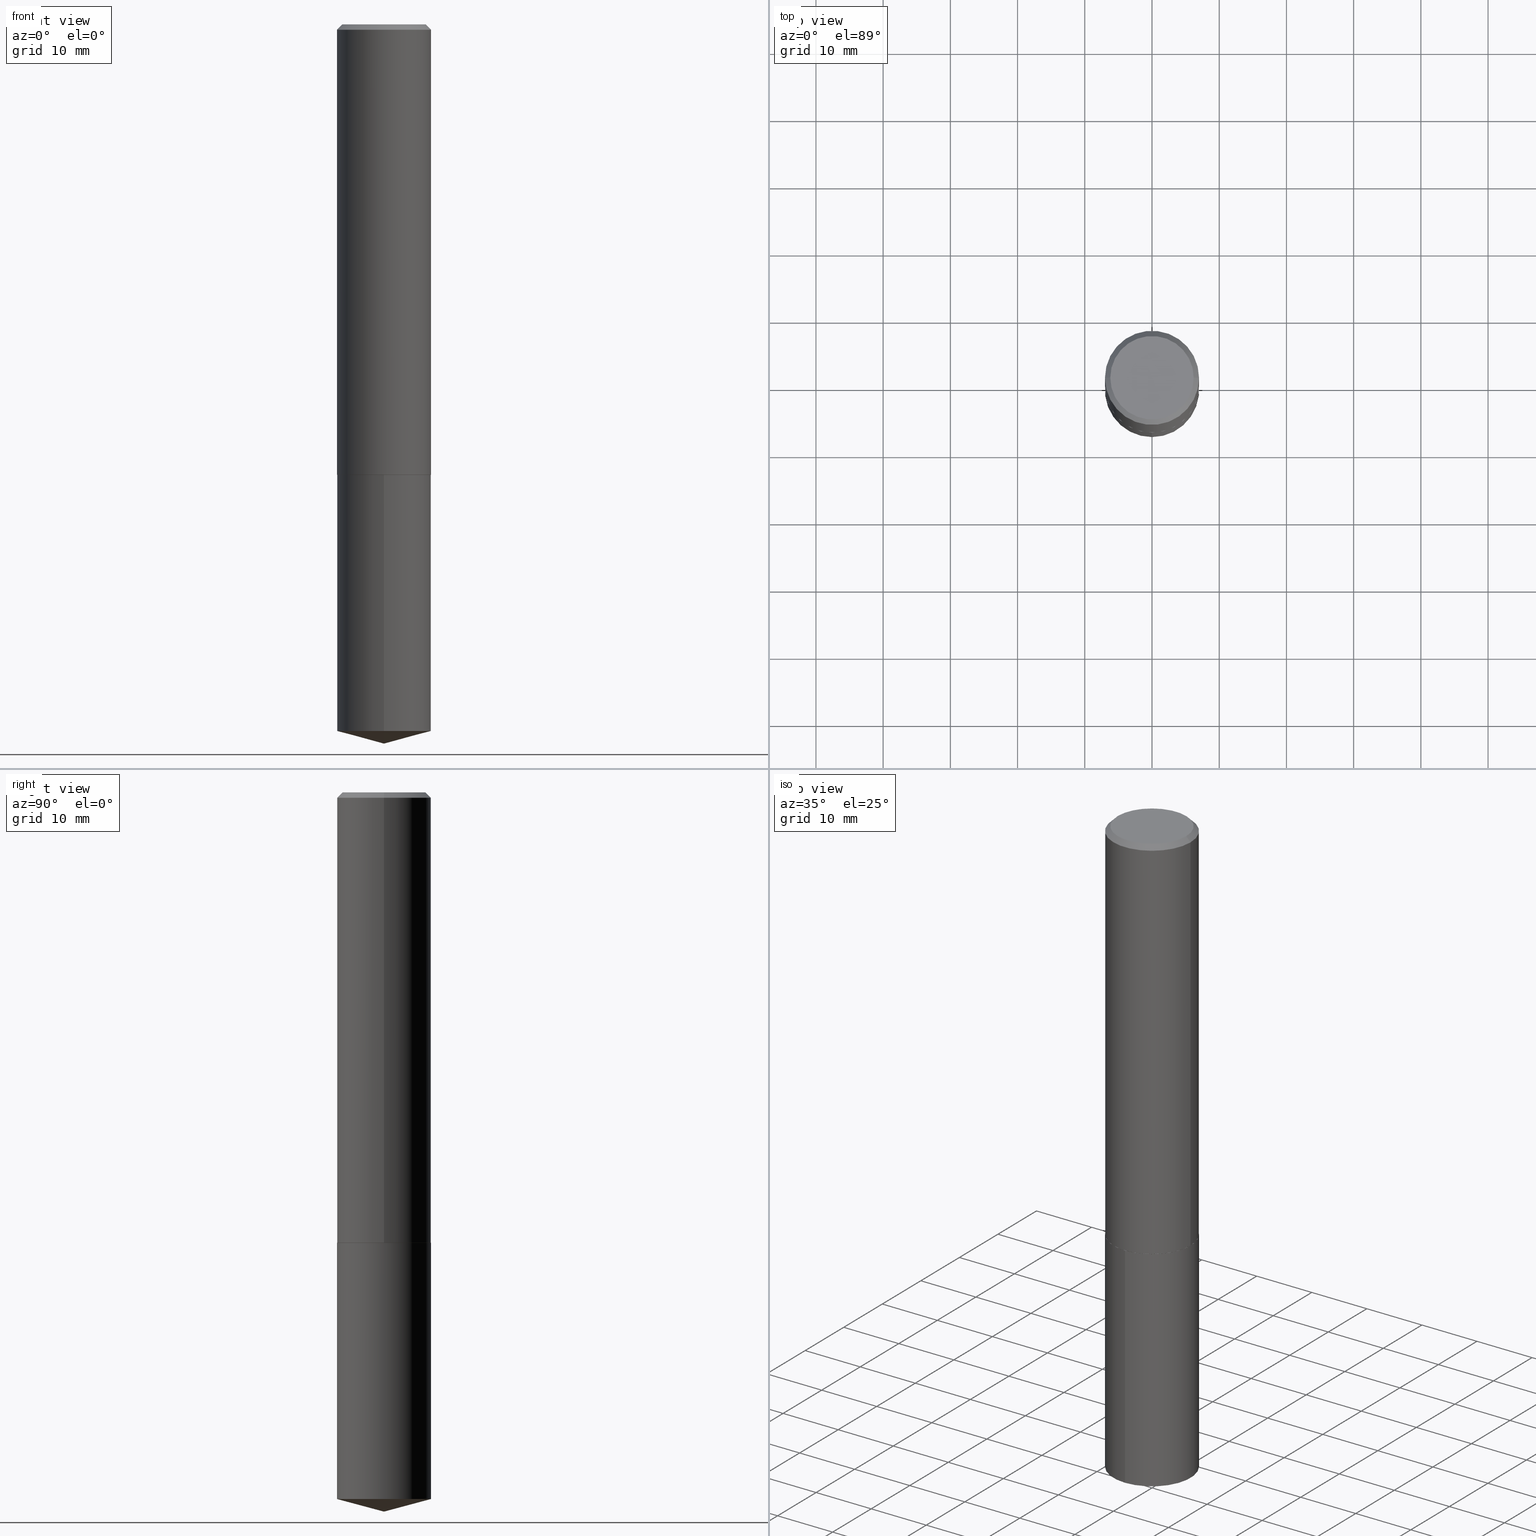
[diagram: canonical four-view strip — front | top / right | iso, engineering-drawing reading convention]
A machine part, canonical four-view strip (front | top / right | iso — engineering-drawing reading convention). The complete STEP part file that produces these views, byte-faithful:
ISO-10303-21;
HEADER;
FILE_DESCRIPTION (( 'STEP AP203' ),
    '1' );
FILE_NAME ('63038.STEP',
    '2024-04-23T08:21:58',
    ( '' ),
    ( '' ),
    'SwSTEP 2.0',
    'SolidWorks 2023',
    '' );
FILE_SCHEMA (( 'CONFIG_CONTROL_DESIGN' ));
ENDSEC;

DATA;
#1 = ORIENTED_EDGE ( 'NONE', *, *, #74, .F. ) ;
#2 = LENGTH_MEASURE_WITH_UNIT ( LENGTH_MEASURE( 0.02539999999999999897 ), #156 );
#3 = AXIS2_PLACEMENT_3D ( 'NONE', #258, #375, #369 ) ;
#4 = CARTESIAN_POINT ( 'NONE',  ( 6.449434882552062671E-29, -9.208083734931027966E-15, -2.637300000000000200 ) ) ;
#5 = ORIENTED_EDGE ( 'NONE', *, *, #29, .F. ) ;
#6 = APPROVAL_STATUS ( 'not_yet_approved' ) ;
#7 = CLOSED_SHELL ( 'NONE', ( #24, #108, #389, #316, #286, #146, #181, #185 ) ) ;
#8 = CC_DESIGN_APPROVAL ( #183, ( #136 ) ) ;
#9 = EDGE_CURVE ( 'NONE', #26, #253, #311, .T. ) ;
#10 = APPROVAL_STATUS ( 'not_yet_approved' ) ;
#11 = VERTEX_POINT ( 'NONE', #25 ) ;
#12 = DIRECTION ( 'NONE',  ( -6.982962677686266711E-15, -1.000000000000000000, 3.510303681827621500E-15 ) ) ;
#13 = VECTOR ( 'NONE', #119, 39.37007874015748143 ) ;
#14 = PERSON_AND_ORGANIZATION_ROLE ( 'design_owner' ) ;
#15 = CARTESIAN_POINT ( 'NONE',  ( 0.2756000000000000116, -1.999862040024683603E-15, -0.03125000000000020123 ) ) ;
#16 = PERSON_AND_ORGANIZATION ( #197, #44 ) ;
#17 = CARTESIAN_POINT ( 'NONE',  ( -0.2756000000000002892, -7.249827955176189799E-15, -2.637300000000000200 ) ) ;
#18 = CALENDAR_DATE ( 2024, 23, 4 ) ;
#19 = AXIS2_PLACEMENT_3D ( 'NONE', #39, #251, #98 ) ;
#20 = CARTESIAN_POINT ( 'NONE',  ( 0.2756000000000002892, -1.113258824890136450E-14, -2.637300000000000200 ) ) ;
#21 = LINE ( 'NONE', #301, #366 ) ;
#22 = FACE_OUTER_BOUND ( 'NONE', #104, .T. ) ;
#23 = LINE ( 'NONE', #202, #13 ) ;
#24 = ADVANCED_FACE ( 'NONE', ( #84 ), #33, .T. ) ;
#25 = CARTESIAN_POINT ( 'NONE',  ( -0.2756000000000002892, -7.249827955176189799E-15, -2.637300000000000200 ) ) ;
#26 = VERTEX_POINT ( 'NONE', #240 ) ;
#27 = PRODUCT ( '63038', '63038', '', ( #363 ) ) ;
#28 = ORIENTED_EDGE ( 'NONE', *, *, #299, .F. ) ;
#29 = EDGE_CURVE ( 'NONE', #167, #138, #23, .T. ) ;
#30 = AXIS2_PLACEMENT_3D ( 'NONE', #114, #200, #268 ) ;
#31 = ORIENTED_EDGE ( 'NONE', *, *, #193, .T. ) ;
#32 = DATE_TIME_ROLE ( 'creation_date' ) ;
#33 = CONICAL_SURFACE ( 'NONE', #135, 0.2756000000000000116, 0.7853981633974450594 ) ;
#34 = APPROVAL ( #6, 'UNSPECIFIED' ) ;
#35 = DIRECTION ( 'NONE',  ( 0.7071067811865452413, -7.319954787623248157E-15, -0.7071067811865497932 ) ) ;
#36 = CIRCLE ( 'NONE', #308, 0.2756000000000002892 ) ;
#37 = CALENDAR_DATE ( 2024, 23, 4 ) ;
#38 = DIRECTION ( 'NONE',  ( -2.445558201220444659E-29, 3.491353320064535150E-15, 1.000000000000000000 ) ) ;
#39 = CARTESIAN_POINT ( 'NONE',  ( 7.642090019328601786E-31, -1.091087918388490144E-16, -0.03125000000000020123 ) ) ;
#40 = CC_DESIGN_PERSON_AND_ORGANIZATION_ASSIGNMENT ( #83, #233, ( #136 ) ) ;
#41 = ORIENTED_EDGE ( 'NONE', *, *, #379, .F. ) ;
#42 = LINE ( 'NONE', #249, #49 ) ;
#43 = CIRCLE ( 'NONE', #279, 0.2756000000000000116 ) ;
#44 = ORGANIZATION ( 'UNSPECIFIED', 'UNSPECIFIED', '' ) ;
#45 = DIRECTION ( 'NONE',  ( 1.000000000000000000, -6.982962677686265922E-15, 0.000000000000000000 ) ) ;
#46 = PERSON_AND_ORGANIZATION_ROLE ( 'creator' ) ;
#47 = DIRECTION ( 'NONE',  ( 0.7071067811860403118, -2.468850131076945266E-15, 0.7071067811870545006 ) ) ;
#48 = COORDINATED_UNIVERSAL_TIME_OFFSET ( 5, 0, .BEHIND. ) ;
#49 = VECTOR ( 'NONE', #163, 39.37007874015748143 ) ;
#50 = CARTESIAN_POINT ( 'NONE',  ( 6.450657616955154352E-29, -9.209829475600450259E-15, -2.637800000000000367 ) ) ;
#51 = SHAPE_DEFINITION_REPRESENTATION ( #213, #154 ) ;
#52 = DIRECTION ( 'NONE',  ( -2.445468806185136597E-29, 3.491481338843145583E-15, 1.000000000000000000 ) ) ;
#53 = FACE_OUTER_BOUND ( 'NONE', #144, .T. ) ;
#54 = CARTESIAN_POINT ( 'NONE',  ( 0.2756000000000001782, -1.924504513970336137E-15, 1.343874319409360828E-29 ) ) ;
#55 = DIRECTION ( 'NONE',  ( -6.982962677686265922E-15, -1.000000000000000000, 3.964946289788480896E-15 ) ) ;
#56 = CYLINDRICAL_SURFACE ( 'NONE', #236, 0.2756000000000001782 ) ;
#57 = CONICAL_SURFACE ( 'NONE', #378, 146.9311341562558084, 1.308996938995748538 ) ;
#58 = LOCAL_TIME ( 4, 21, 58.00000000000000000, #170 ) ;
#59 = DIRECTION ( 'NONE',  ( 1.000000000000000000, -6.982962677686265922E-15, 0.000000000000000000 ) ) ;
#60 = CARTESIAN_POINT ( 'NONE',  ( 0.2756000000000002892, -1.113258824890136450E-14, -2.637300000000000200 ) ) ;
#61 = EDGE_CURVE ( 'NONE', #79, #182, #359, .T. ) ;
#62 = DESIGN_CONTEXT ( 'detailed design', #354, 'design' ) ;
#63 = ORIENTED_EDGE ( 'NONE', *, *, #227, .T. ) ;
#64 = DIRECTION ( 'NONE',  ( 0.000000000000000000, 0.000000000000000000, 1.000000000000000000 ) ) ;
#65 = MANIFOLD_SOLID_BREP ( 'Body-Move/Copy2[1]', #241 ) ;
#66 = MANIFOLD_SOLID_BREP ( 'Body-Move/Copy2[2]', #7 ) ;
#67 = ORIENTED_EDGE ( 'NONE', *, *, #143, .T. ) ;
#68 = COORDINATED_UNIVERSAL_TIME_OFFSET ( 5, 0, .BEHIND. ) ;
#69 = DIRECTION ( 'NONE',  ( -2.445468806185136877E-29, 3.491481338843145188E-15, 1.000000000000000000 ) ) ;
#70 = DATE_AND_TIME ( #313, #93 ) ;
#71 = CIRCLE ( 'NONE', #124, 0.2756000000000000116 ) ;
#72 = AXIS2_PLACEMENT_3D ( 'NONE', #318, #192, #45 ) ;
#73 = CARTESIAN_POINT ( 'NONE',  ( 0.2756000000000000116, -2.033613305809184449E-15, -0.03125000000000020123 ) ) ;
#74 = EDGE_CURVE ( 'NONE', #149, #261, #385, .T. ) ;
#75 = PLANE ( 'NONE',  #3 ) ;
#76 = ORIENTED_EDGE ( 'NONE', *, *, #157, .T. ) ;
#77 = DIRECTION ( 'NONE',  ( -6.982962677686265922E-15, -1.000000000000000000, 3.964946289788480896E-15 ) ) ;
#78 = ORIENTED_EDGE ( 'NONE', *, *, #9, .T. ) ;
#79 = VERTEX_POINT ( 'NONE', #87 ) ;
#80 = CARTESIAN_POINT ( 'NONE',  ( -1.924504513970233585E-15, -0.2756000000000144445, -4.138753202565982114 ) ) ;
#81 = LOCAL_TIME ( 4, 21, 58.00000000000000000, #131 ) ;
#82 = ORIENTED_EDGE ( 'NONE', *, *, #29, .T. ) ;
#83 = PERSON_AND_ORGANIZATION ( #197, #44 ) ;
#84 = FACE_OUTER_BOUND ( 'NONE', #370, .T. ) ;
#85 = PERSON_AND_ORGANIZATION ( #197, #44 ) ;
#86 = DIRECTION ( 'NONE',  ( -2.445468806185136877E-29, 3.491481338843145188E-15, 1.000000000000000000 ) ) ;
#87 = CARTESIAN_POINT ( 'NONE',  ( -0.2756000000000000116, -2.700340483630100761E-15, -0.03125000000000020123 ) ) ;
#88 = EDGE_LOOP ( 'NONE', ( #95, #126, #63, #289 ) ) ;
#89 = LINE ( 'NONE', #54, #216 ) ;
#90 = CARTESIAN_POINT ( 'NONE',  ( 7.642090019328601786E-31, -1.091087918388490144E-16, -0.03125000000000020123 ) ) ;
#91 = DIRECTION ( 'NONE',  ( -2.445558201220444659E-29, 3.491353320064535150E-15, 1.000000000000000000 ) ) ;
#92 = APPROVAL_PERSON_ORGANIZATION ( #159, #183, #99 ) ;
#93 = LOCAL_TIME ( 4, 21, 58.00000000000000000, #68 ) ;
#94 =( NAMED_UNIT ( * ) PLANE_ANGLE_UNIT ( ) SI_UNIT ( $, .RADIAN. ) );
#95 = ORIENTED_EDGE ( 'NONE', *, *, #221, .F. ) ;
#96 = ORIENTED_EDGE ( 'NONE', *, *, #305, .T. ) ;
#97 = DIRECTION ( 'NONE',  ( -2.445468806185136597E-29, 3.491481338843145583E-15, 1.000000000000000000 ) ) ;
#98 = DIRECTION ( 'NONE',  ( -1.000000000000000000, 6.982962677686267499E-15, 0.000000000000000000 ) ) ;
#99 = APPROVAL_ROLE ( '' ) ;
#100 = DIRECTION ( 'NONE',  ( -2.445558201220444659E-29, 3.491353320064535150E-15, 1.000000000000000000 ) ) ;
#101 = VERTEX_POINT ( 'NONE', #384 ) ;
#102 = CIRCLE ( 'NONE', #372, 0.2756000000000000116 ) ;
#103 = FACE_OUTER_BOUND ( 'NONE', #273, .T. ) ;
#104 = EDGE_LOOP ( 'NONE', ( #1, #387, #111 ) ) ;
#105 = LINE ( 'NONE', #293, #110 ) ;
#106 = ORIENTED_EDGE ( 'NONE', *, *, #164, .T. ) ;
#107 = APPROVAL_DATE_TIME ( #129, #34 ) ;
#108 = ADVANCED_FACE ( 'NONE', ( #53 ), #56, .T. ) ;
#109 = EDGE_LOOP ( 'NONE', ( #5, #275, #204, #177 ) ) ;
#110 = VECTOR ( 'NONE', #69, 39.37007874015748143 ) ;
#111 = ORIENTED_EDGE ( 'NONE', *, *, #212, .F. ) ;
#112 = DIRECTION ( 'NONE',  ( 6.863315791527694259E-15, 0.9659258262890694224, 0.2588190451025160765 ) ) ;
#113 = CARTESIAN_POINT ( 'NONE',  ( 6.450657616955154352E-29, -9.209829475600450259E-15, -2.637800000000000367 ) ) ;
#114 = CARTESIAN_POINT ( 'NONE',  ( 7.642090019328601786E-31, -1.091087918388490144E-16, -0.03125000000000020123 ) ) ;
#115 = FACE_OUTER_BOUND ( 'NONE', #348, .T. ) ;
#116 = DIRECTION ( 'NONE',  ( -2.445468806185136597E-29, 3.491481338843145583E-15, 1.000000000000000000 ) ) ;
#117 = AXIS2_PLACEMENT_3D ( 'NONE', #113, #331, #55 ) ;
#118 = AXIS2_PLACEMENT_3D ( 'NONE', #361, #64, #309 ) ;
#119 = DIRECTION ( 'NONE',  ( -2.445558201220444659E-29, 3.491353320064535150E-15, 1.000000000000000000 ) ) ;
#120 = ADVANCED_FACE ( 'NONE', ( #22 ), #57, .T. ) ;
#121 = CARTESIAN_POINT ( 'NONE',  ( 1.030168686601297567E-28, -1.470835037197229741E-14, -4.212600000000000122 ) ) ;
#122 = FACE_OUTER_BOUND ( 'NONE', #319, .T. ) ;
#123 = DIRECTION ( 'NONE',  ( 2.445468806185136597E-29, -3.491481338843145583E-15, -1.000000000000000000 ) ) ;
#124 = AXIS2_PLACEMENT_3D ( 'NONE', #285, #162, #346 ) ;
#125 = DIRECTION ( 'NONE',  ( 1.000000000000000000, -6.982962677686265922E-15, 0.000000000000000000 ) ) ;
#126 = ORIENTED_EDGE ( 'NONE', *, *, #9, .F. ) ;
#127 = ADVANCED_FACE ( 'NONE', ( #115 ), #271, .T. ) ;
#128 = AXIS2_PLACEMENT_3D ( 'NONE', #220, #226, #367 ) ;
#129 = DATE_AND_TIME ( #257, #81 ) ;
#130 = EDGE_CURVE ( 'NONE', #261, #269, #180, .T. ) ;
#131 = COORDINATED_UNIVERSAL_TIME_OFFSET ( 5, 0, .BEHIND. ) ;
#132 = EDGE_LOOP ( 'NONE', ( #343, #350, #380 ) ) ;
#133 = FACE_OUTER_BOUND ( 'NONE', #132, .T. ) ;
#134 = ORIENTED_EDGE ( 'NONE', *, *, #324, .F. ) ;
#135 = AXIS2_PLACEMENT_3D ( 'NONE', #151, #123, #266 ) ;
#136 = PRODUCT_DEFINITION_FORMATION_WITH_SPECIFIED_SOURCE ( 'ANY', '', #27, .NOT_KNOWN. ) ;
#137 = DIRECTION ( 'NONE',  ( -2.445558201220444659E-29, 3.491353320064535150E-15, 1.000000000000000000 ) ) ;
#138 = VERTEX_POINT ( 'NONE', #272 ) ;
#139 = APPLICATION_PROTOCOL_DEFINITION ( 'international standard', 'config_control_design', 1994, #354 ) ;
#140 = DIRECTION ( 'NONE',  ( -2.445468806185136597E-29, 3.491481338843145583E-15, 1.000000000000000000 ) ) ;
#141 = ORIENTED_EDGE ( 'NONE', *, *, #368, .T. ) ;
#142 = CARTESIAN_POINT ( 'NONE',  ( -5.300858916259507926E-47, 7.568221659237642966E-33, 2.167624834490815307E-18 ) ) ;
#143 = EDGE_CURVE ( 'NONE', #101, #158, #321, .T. ) ;
#144 = EDGE_LOOP ( 'NONE', ( #96, #302, #174, #28 ) ) ;
#145 = CC_DESIGN_SECURITY_CLASSIFICATION ( #229, ( #136 ) ) ;
#146 = ADVANCED_FACE ( 'NONE', ( #171 ), #147, .T. ) ;
#147 = CYLINDRICAL_SURFACE ( 'NONE', #347, 0.2756000000000001782 ) ;
#148 = DIRECTION ( 'NONE',  ( -2.445558201220444659E-29, 3.491353320064535150E-15, 1.000000000000000000 ) ) ;
#149 = VERTEX_POINT ( 'NONE', #325 ) ;
#150 = CONICAL_SURFACE ( 'NONE', #19, 0.2756000000000000116, 0.7853981633974450594 ) ;
#151 = CARTESIAN_POINT ( 'NONE',  ( 7.642090019328601786E-31, -1.091087918388490144E-16, -0.03125000000000020123 ) ) ;
#152 = EDGE_CURVE ( 'NONE', #138, #269, #201, .T. ) ;
#153 = DIRECTION ( 'NONE',  ( 1.000000000000000000, -6.982962677686266711E-15, 4.876118653798672988E-29 ) ) ;
#154 = ADVANCED_BREP_SHAPE_REPRESENTATION ( '63038', ( #65, #66, #118 ), #349 ) ;
#155 = AXIS2_PLACEMENT_3D ( 'NONE', #188, #314, #12 ) ;
#156 =( LENGTH_UNIT ( ) NAMED_UNIT ( * ) SI_UNIT ( $, .METRE. ) );
#157 = EDGE_CURVE ( 'NONE', #295, #101, #274, .T. ) ;
#158 = VERTEX_POINT ( 'NONE', #60 ) ;
#159 = PERSON_AND_ORGANIZATION ( #197, #44 ) ;
#160 = CIRCLE ( 'NONE', #30, 0.2756000000000000116 ) ;
#161 = FACE_OUTER_BOUND ( 'NONE', #300, .T. ) ;
#162 = DIRECTION ( 'NONE',  ( -2.445558201220444659E-29, 3.491353320064535150E-15, 1.000000000000000000 ) ) ;
#163 = DIRECTION ( 'NONE',  ( -0.7071067811865452413, 2.468850131082233000E-15, -0.7071067811865497932 ) ) ;
#164 = EDGE_CURVE ( 'NONE', #101, #295, #215, .T. ) ;
#165 = PERSON_AND_ORGANIZATION ( #197, #44 ) ;
#166 = CARTESIAN_POINT ( 'NONE',  ( -1.924504513970270662E-15, -0.2756000000000092265, -2.637799999999999478 ) ) ;
#167 = VERTEX_POINT ( 'NONE', #310 ) ;
#168 = APPROVAL_DATE_TIME ( #284, #183 ) ;
#169 = FACE_OUTER_BOUND ( 'NONE', #109, .T. ) ;
#170 = COORDINATED_UNIVERSAL_TIME_OFFSET ( 5, 0, .BEHIND. ) ;
#171 = FACE_OUTER_BOUND ( 'NONE', #211, .T. ) ;
#172 = DIRECTION ( 'NONE',  ( 1.000000000000000000, -6.982962677686265922E-15, 0.000000000000000000 ) ) ;
#173 = VECTOR ( 'NONE', #35, 39.37007874015748143 ) ;
#174 = ORIENTED_EDGE ( 'NONE', *, *, #368, .F. ) ;
#175 = CARTESIAN_POINT ( 'NONE',  ( 0.000000000000000000, 0.000000000000000000, 0.000000000000000000 ) ) ;
#176 = FACE_OUTER_BOUND ( 'NONE', #222, .T. ) ;
#177 = ORIENTED_EDGE ( 'NONE', *, *, #152, .F. ) ;
#178 = PLANE ( 'NONE',  #280 ) ;
#179 = APPROVAL_PERSON_ORGANIZATION ( #250, #34, #282 ) ;
#180 = LINE ( 'NONE', #307, #288 ) ;
#181 = ADVANCED_FACE ( 'NONE', ( #218 ), #150, .T. ) ;
#182 = VERTEX_POINT ( 'NONE', #73 ) ;
#183 = APPROVAL ( #10, 'UNSPECIFIED' ) ;
#184 = ORIENTED_EDGE ( 'NONE', *, *, #157, .F. ) ;
#185 = ADVANCED_FACE ( 'NONE', ( #103 ), #338, .F. ) ;
#186 = DIRECTION ( 'NONE',  ( 1.000000000000000000, -6.982962677686268288E-15, 0.000000000000000000 ) ) ;
#187 = CIRCLE ( 'NONE', #320, 0.2443500000000000116 ) ;
#188 = CARTESIAN_POINT ( 'NONE',  ( -8.597989627344968140E-28, 1.227468424366129102E-13, 35.15747874015747954 ) ) ;
#189 = CARTESIAN_POINT ( 'NONE',  ( 0.2443500000000000116, -1.838112362890078477E-15, 2.167624834503208667E-18 ) ) ;
#190 = ORIENTED_EDGE ( 'NONE', *, *, #217, .F. ) ;
#191 = DIRECTION ( 'NONE',  ( -6.982962677686265922E-15, -1.000000000000000000, 3.964946289788480896E-15 ) ) ;
#192 = DIRECTION ( 'NONE',  ( -2.445468806185136597E-29, 3.491481338843145583E-15, 1.000000000000000000 ) ) ;
#193 = EDGE_CURVE ( 'NONE', #269, #138, #43, .T. ) ;
#194 = DIRECTION ( 'NONE',  ( 1.000000000000000000, -6.982962677686266711E-15, 4.876118653798672988E-29 ) ) ;
#195 = ORIENTED_EDGE ( 'NONE', *, *, #212, .T. ) ;
#196 = APPROVAL_STATUS ( 'not_yet_approved' ) ;
#197 = PERSON ( 'UNSPECIFIED', 'UNSPECIFIED', 'UNSPECIFIED', ('UNSPECIFIED'), ('UNSPECIFIED'), ('UNSPECIFIED') ) ;
#198 = DIRECTION ( 'NONE',  ( 1.000000000000000000, -6.982962677686265922E-15, 4.876176775795935793E-29 ) ) ;
#199 = DATE_AND_TIME ( #297, #298 ) ;
#200 = DIRECTION ( 'NONE',  ( -2.445468806185136597E-29, 3.491481338843145583E-15, 1.000000000000000000 ) ) ;
#201 = CIRCLE ( 'NONE', #208, 0.2756000000000000116 ) ;
#202 = CARTESIAN_POINT ( 'NONE',  ( 1.958255779754900487E-15, 0.2755999999999907968, -2.637800000000001699 ) ) ;
#203 = EDGE_CURVE ( 'NONE', #11, #79, #105, .T. ) ;
#204 = ORIENTED_EDGE ( 'NONE', *, *, #130, .T. ) ;
#205 = CARTESIAN_POINT ( 'NONE',  ( 6.449434882552062671E-29, -9.208083734931027966E-15, -2.637300000000000200 ) ) ;
#206 = DIRECTION ( 'NONE',  ( -2.445468806185136597E-29, 3.491481338843145583E-15, 1.000000000000000000 ) ) ;
#207 = CC_DESIGN_DATE_AND_TIME_ASSIGNMENT ( #70, #32, ( #278 ) ) ;
#208 = AXIS2_PLACEMENT_3D ( 'NONE', #50, #235, #355 ) ;
#209 = AXIS2_PLACEMENT_3D ( 'NONE', #276, #230, #315 ) ;
#210 = AXIS2_PLACEMENT_3D ( 'NONE', #371, #137, #255 ) ;
#211 = EDGE_LOOP ( 'NONE', ( #239, #292, #231, #317 ) ) ;
#212 = EDGE_CURVE ( 'NONE', #261, #167, #71, .T. ) ;
#213 = PRODUCT_DEFINITION_SHAPE ( 'NONE', 'NONE',  #278 ) ;
#214 = ORIENTED_EDGE ( 'NONE', *, *, #221, .T. ) ;
#215 = CIRCLE ( 'NONE', #296, 0.2751000000000008439 ) ;
#216 = VECTOR ( 'NONE', #86, 39.37007874015748143 ) ;
#217 = EDGE_CURVE ( 'NONE', #295, #11, #223, .T. ) ;
#218 = FACE_OUTER_BOUND ( 'NONE', #88, .T. ) ;
#219 = CARTESIAN_POINT ( 'NONE',  ( 6.450657616955154352E-29, -9.209829475600450259E-15, -2.637800000000000367 ) ) ;
#220 = CARTESIAN_POINT ( 'NONE',  ( -2.650429458129753963E-47, 3.784110829618821483E-33, 1.083812417245407654E-18 ) ) ;
#221 = EDGE_CURVE ( 'NONE', #253, #182, #340, .T. ) ;
#222 = EDGE_LOOP ( 'NONE', ( #294, #184 ) ) ;
#223 = LINE ( 'NONE', #17, #333 ) ;
#224 = CC_DESIGN_DATE_AND_TIME_ASSIGNMENT ( #351, #353, ( #229 ) ) ;
#225 = PERSON_AND_ORGANIZATION ( #197, #44 ) ;
#226 = DIRECTION ( 'NONE',  ( 2.438088387897960049E-29, -3.491481338843145188E-15, -1.000000000000000000 ) ) ;
#227 = EDGE_CURVE ( 'NONE', #26, #79, #42, .T. ) ;
#228 = ORIENTED_EDGE ( 'NONE', *, *, #152, .T. ) ;
#229 = SECURITY_CLASSIFICATION ( '', '', #376 ) ;
#230 = DIRECTION ( 'NONE',  ( -2.445468806185136597E-29, 3.491481338843145583E-15, 1.000000000000000000 ) ) ;
#231 = ORIENTED_EDGE ( 'NONE', *, *, #299, .T. ) ;
#232 = CARTESIAN_POINT ( 'NONE',  ( 0.000000000000000000, 0.000000000000000000, 0.000000000000000000 ) ) ;
#233 = PERSON_AND_ORGANIZATION_ROLE ( 'design_supplier' ) ;
#234 = CARTESIAN_POINT ( 'NONE',  ( 6.450657616955154352E-29, -9.209829475600450259E-15, -2.637800000000000367 ) ) ;
#235 = DIRECTION ( 'NONE',  ( -2.445558201220444659E-29, 3.491353320064535150E-15, 1.000000000000000000 ) ) ;
#236 = AXIS2_PLACEMENT_3D ( 'NONE', #175, #238, #356 ) ;
#237 = ADVANCED_FACE ( 'NONE', ( #161 ), #75, .F. ) ;
#238 = DIRECTION ( 'NONE',  ( -2.445468806185136597E-29, 3.491481338843145583E-15, 1.000000000000000000 ) ) ;
#239 = ORIENTED_EDGE ( 'NONE', *, *, #203, .F. ) ;
#240 = CARTESIAN_POINT ( 'NONE',  ( -0.2443500000000000116, 1.760841326212062881E-15, 2.167624834478691964E-18 ) ) ;
#241 = CLOSED_SHELL ( 'NONE', ( #127, #120, #270, #283, #237 ) ) ;
#242 = LOCAL_TIME ( 4, 21, 58.00000000000000000, #339 ) ;
#243 = ORIENTED_EDGE ( 'NONE', *, *, #324, .T. ) ;
#244 = APPLICATION_PROTOCOL_DEFINITION ( 'international standard', 'config_control_design', 1994, #335 ) ;
#245 = ORIENTED_EDGE ( 'NONE', *, *, #143, .F. ) ;
#246 =( NAMED_UNIT ( * ) SI_UNIT ( $, .STERADIAN. ) SOLID_ANGLE_UNIT ( ) );
#247 = VECTOR ( 'NONE', #358, 39.37007874015748854 ) ;
#248 = CONICAL_SURFACE ( 'NONE', #306, 0.2756000000000002892, 0.7853981633967311859 ) ;
#249 = CARTESIAN_POINT ( 'NONE',  ( -0.2756000000000000116, 1.815395722131486248E-15, -0.03125000000000020123 ) ) ;
#250 = PERSON_AND_ORGANIZATION ( #197, #44 ) ;
#251 = DIRECTION ( 'NONE',  ( 2.445468806185136597E-29, -3.491481338843145583E-15, -1.000000000000000000 ) ) ;
#252 = CARTESIAN_POINT ( 'NONE',  ( 6.450657616955154352E-29, -9.209829475600450259E-15, -2.637800000000000367 ) ) ;
#253 = VERTEX_POINT ( 'NONE', #189 ) ;
#254 = CC_DESIGN_PERSON_AND_ORGANIZATION_ASSIGNMENT ( #225, #345, ( #278 ) ) ;
#255 = DIRECTION ( 'NONE',  ( -6.982962677686265922E-15, -1.000000000000000000, 3.964946289788480896E-15 ) ) ;
#256 = ORIENTED_EDGE ( 'NONE', *, *, #227, .F. ) ;
#257 = CALENDAR_DATE ( 2024, 23, 4 ) ;
#258 = CARTESIAN_POINT ( 'NONE',  ( 6.450657616955154352E-29, -9.209829475600450259E-15, -2.637800000000000367 ) ) ;
#259 = EDGE_LOOP ( 'NONE', ( #190, #76, #67, #41 ) ) ;
#260 = PERSON_AND_ORGANIZATION_ROLE ( 'classification_officer' ) ;
#261 = VERTEX_POINT ( 'NONE', #80 ) ;
#262 = AXIS2_PLACEMENT_3D ( 'NONE', #90, #206, #329 ) ;
#263 = AXIS2_PLACEMENT_3D ( 'NONE', #205, #52, #172 ) ;
#264 = CC_DESIGN_APPROVAL ( #34, ( #278 ) ) ;
#265 = CARTESIAN_POINT ( 'NONE',  ( -8.597989627344968140E-28, 1.227468424366129102E-13, 35.15747874015747954 ) ) ;
#266 = DIRECTION ( 'NONE',  ( -1.000000000000000000, 6.982962677686267499E-15, 0.000000000000000000 ) ) ;
#267 = UNCERTAINTY_MEASURE_WITH_UNIT (LENGTH_MEASURE( 1.000000000000000082E-05 ), #337, 'distance_accuracy_value', 'NONE');
#268 = DIRECTION ( 'NONE',  ( 1.000000000000000000, -6.982962677686267499E-15, 0.000000000000000000 ) ) ;
#269 = VERTEX_POINT ( 'NONE', #166 ) ;
#270 = ADVANCED_FACE ( 'NONE', ( #133 ), #326, .T. ) ;
#271 = CYLINDRICAL_SURFACE ( 'NONE', #117, 0.2756000000000000116 ) ;
#272 = CARTESIAN_POINT ( 'NONE',  ( 1.958255779754937564E-15, 0.2755999999999907968, -2.637800000000001699 ) ) ;
#273 = EDGE_LOOP ( 'NONE', ( #78, #243 ) ) ;
#274 = CIRCLE ( 'NONE', #209, 0.2751000000000008439 ) ;
#275 = ORIENTED_EDGE ( 'NONE', *, *, #277, .T. ) ;
#276 = CARTESIAN_POINT ( 'NONE',  ( 6.450657616955154352E-29, -9.209829475600450259E-15, -2.637800000000000367 ) ) ;
#277 = EDGE_CURVE ( 'NONE', #167, #261, #102, .T. ) ;
#278 = PRODUCT_DEFINITION ( 'UNKNOWN', '', #136, #62 ) ;
#279 = AXIS2_PLACEMENT_3D ( 'NONE', #252, #100, #191 ) ;
#280 = AXIS2_PLACEMENT_3D ( 'NONE', #234, #383, #304 ) ;
#281 = ORIENTED_EDGE ( 'NONE', *, *, #130, .F. ) ;
#282 = APPROVAL_ROLE ( '' ) ;
#283 = ADVANCED_FACE ( 'NONE', ( #169 ), #291, .T. ) ;
#284 = DATE_AND_TIME ( #37, #242 ) ;
#285 = CARTESIAN_POINT ( 'NONE',  ( 1.012132603113848376E-28, -1.445018742264069166E-14, -4.138753202565983003 ) ) ;
#286 = ADVANCED_FACE ( 'NONE', ( #374 ), #334, .T. ) ;
#287 = CARTESIAN_POINT ( 'NONE',  ( 1.012132603113848376E-28, -1.445018742264069166E-14, -4.138753202565983003 ) ) ;
#288 = VECTOR ( 'NONE', #148, 39.37007874015748143 ) ;
#289 = ORIENTED_EDGE ( 'NONE', *, *, #61, .T. ) ;
#290 = PRODUCT_RELATED_PRODUCT_CATEGORY ( 'detail', '', ( #27 ) ) ;
#291 = CYLINDRICAL_SURFACE ( 'NONE', #210, 0.2756000000000000116 ) ;
#292 = ORIENTED_EDGE ( 'NONE', *, *, #379, .T. ) ;
#293 = CARTESIAN_POINT ( 'NONE',  ( -0.2756000000000001782, 1.958255779754837378E-15, -1.355658510874252848E-29 ) ) ;
#294 = ORIENTED_EDGE ( 'NONE', *, *, #164, .F. ) ;
#295 = VERTEX_POINT ( 'NONE', #323 ) ;
#296 = AXIS2_PLACEMENT_3D ( 'NONE', #219, #140, #186 ) ;
#297 = CALENDAR_DATE ( 2024, 23, 4 ) ;
#298 = LOCAL_TIME ( 4, 21, 58.00000000000000000, #48 ) ;
#299 = EDGE_CURVE ( 'NONE', #158, #182, #89, .T. ) ;
#300 = EDGE_LOOP ( 'NONE', ( #31, #228 ) ) ;
#301 = CARTESIAN_POINT ( 'NONE',  ( 1.030216261394572408E-28, -1.470767499610386027E-14, -4.212600000000000122 ) ) ;
#302 = ORIENTED_EDGE ( 'NONE', *, *, #203, .T. ) ;
#303 = DIRECTION ( 'NONE',  ( -2.445468806185136597E-29, 3.491481338843145583E-15, 1.000000000000000000 ) ) ;
#304 = DIRECTION ( 'NONE',  ( 1.000000000000000000, -6.982962677686265922E-15, 4.876176775795935793E-29 ) ) ;
#305 = EDGE_CURVE ( 'NONE', #158, #11, #360, .T. ) ;
#306 = AXIS2_PLACEMENT_3D ( 'NONE', #4, #97, #125 ) ;
#307 = CARTESIAN_POINT ( 'NONE',  ( -1.924504513970270662E-15, -0.2756000000000092265, -2.637799999999999478 ) ) ;
#308 = AXIS2_PLACEMENT_3D ( 'NONE', #386, #116, #59 ) ;
#309 = DIRECTION ( 'NONE',  ( 1.000000000000000000, 0.000000000000000000, 0.000000000000000000 ) ) ;
#310 = CARTESIAN_POINT ( 'NONE',  ( 1.958255779754936775E-15, 0.2755999999999855232, -4.138753202565984779 ) ) ;
#311 = CIRCLE ( 'NONE', #388, 0.2443500000000000116 ) ;
#312 = CC_DESIGN_APPROVAL ( #365, ( #229 ) ) ;
#313 = CALENDAR_DATE ( 2024, 23, 4 ) ;
#314 = DIRECTION ( 'NONE',  ( -2.445558201220444659E-29, 3.491353320064535150E-15, 1.000000000000000000 ) ) ;
#315 = DIRECTION ( 'NONE',  ( 1.000000000000000000, -6.982962677686268288E-15, 0.000000000000000000 ) ) ;
#316 = ADVANCED_FACE ( 'NONE', ( #176 ), #178, .F. ) ;
#317 = ORIENTED_EDGE ( 'NONE', *, *, #61, .F. ) ;
#318 = CARTESIAN_POINT ( 'NONE',  ( 6.449434882552062671E-29, -9.208083734931027966E-15, -2.637300000000000200 ) ) ;
#319 = EDGE_LOOP ( 'NONE', ( #106, #373, #364, #245 ) ) ;
#320 = AXIS2_PLACEMENT_3D ( 'NONE', #142, #377, #194 ) ;
#321 = LINE ( 'NONE', #20, #336 ) ;
#322 = APPROVAL_ROLE ( '' ) ;
#323 = CARTESIAN_POINT ( 'NONE',  ( -0.2751000000000008439, -7.252477182350298634E-15, -2.637800000000000367 ) ) ;
#324 = EDGE_CURVE ( 'NONE', #253, #26, #187, .T. ) ;
#325 = CARTESIAN_POINT ( 'NONE',  ( 1.030215847846124457E-28, -1.470767499610386027E-14, -4.212600000000000122 ) ) ;
#326 = CONICAL_SURFACE ( 'NONE', #155, 146.9311341562558084, 1.308996938995748538 ) ;
#327 = APPROVAL_DATE_TIME ( #199, #365 ) ;
#328 = CC_DESIGN_PERSON_AND_ORGANIZATION_ASSIGNMENT ( #165, #14, ( #27 ) ) ;
#329 = DIRECTION ( 'NONE',  ( 1.000000000000000000, -6.982962677686267499E-15, 0.000000000000000000 ) ) ;
#330 = DIRECTION ( 'NONE',  ( -6.982962677686266711E-15, -1.000000000000000000, 3.510303681827621500E-15 ) ) ;
#331 = DIRECTION ( 'NONE',  ( -2.445558201220444659E-29, 3.491353320064535150E-15, 1.000000000000000000 ) ) ;
#332 = CC_DESIGN_PERSON_AND_ORGANIZATION_ASSIGNMENT ( #16, #46, ( #136 ) ) ;
#333 = VECTOR ( 'NONE', #341, 39.37007874015748854 ) ;
#334 = CONICAL_SURFACE ( 'NONE', #72, 0.2756000000000002892, 0.7853981633967311859 ) ;
#335 = APPLICATION_CONTEXT ( 'configuration controlled 3d designs of mechanical parts and assemblies' ) ;
#336 = VECTOR ( 'NONE', #47, 39.37007874015748854 ) ;
#337 =( CONVERSION_BASED_UNIT ( 'INCH', #2 ) LENGTH_UNIT ( ) NAMED_UNIT ( #342 ) );
#338 = PLANE ( 'NONE',  #128 ) ;
#339 = COORDINATED_UNIVERSAL_TIME_OFFSET ( 5, 0, .BEHIND. ) ;
#340 = LINE ( 'NONE', #15, #173 ) ;
#341 = DIRECTION ( 'NONE',  ( -0.7071067811860403118, 7.493145998868519270E-15, 0.7071067811870545006 ) ) ;
#342 = DIMENSIONAL_EXPONENTS ( 1.000000000000000000, 0.000000000000000000, 0.000000000000000000, 0.000000000000000000, 0.000000000000000000, 0.000000000000000000, 0.000000000000000000 ) ;
#343 = ORIENTED_EDGE ( 'NONE', *, *, #344, .F. ) ;
#344 = EDGE_CURVE ( 'NONE', #149, #167, #21, .T. ) ;
#345 = PERSON_AND_ORGANIZATION_ROLE ( 'creator' ) ;
#346 = DIRECTION ( 'NONE',  ( -6.982962677686265922E-15, -1.000000000000000000, 3.964946289788480896E-15 ) ) ;
#347 = AXIS2_PLACEMENT_3D ( 'NONE', #232, #352, #198 ) ;
#348 = EDGE_LOOP ( 'NONE', ( #195, #82, #357, #281 ) ) ;
#349 =( GEOMETRIC_REPRESENTATION_CONTEXT ( 3 ) GLOBAL_UNCERTAINTY_ASSIGNED_CONTEXT ( ( #267 ) ) GLOBAL_UNIT_ASSIGNED_CONTEXT ( ( #337, #94, #246 ) ) REPRESENTATION_CONTEXT ( 'NONE', 'WORKASPACE' ) );
#350 = ORIENTED_EDGE ( 'NONE', *, *, #74, .T. ) ;
#351 = DATE_AND_TIME ( #18, #58 ) ;
#352 = DIRECTION ( 'NONE',  ( -2.445468806185136597E-29, 3.491481338843145583E-15, 1.000000000000000000 ) ) ;
#353 = DATE_TIME_ROLE ( 'classification_date' ) ;
#354 = APPLICATION_CONTEXT ( 'configuration controlled 3d designs of mechanical parts and assemblies' ) ;
#355 = DIRECTION ( 'NONE',  ( -6.982962677686265922E-15, -1.000000000000000000, 3.964946289788480896E-15 ) ) ;
#356 = DIRECTION ( 'NONE',  ( 1.000000000000000000, -6.982962677686265922E-15, 4.876176775795935793E-29 ) ) ;
#357 = ORIENTED_EDGE ( 'NONE', *, *, #193, .F. ) ;
#358 = DIRECTION ( 'NONE',  ( -6.745023994389839133E-15, -0.9659258262890676461, 0.2588190451025227934 ) ) ;
#359 = CIRCLE ( 'NONE', #262, 0.2756000000000000116 ) ;
#360 = CIRCLE ( 'NONE', #263, 0.2756000000000002892 ) ;
#361 = CARTESIAN_POINT ( 'NONE',  ( 0.000000000000000000, 0.000000000000000000, 0.000000000000000000 ) ) ;
#362 = CC_DESIGN_PERSON_AND_ORGANIZATION_ASSIGNMENT ( #382, #260, ( #229 ) ) ;
#363 = MECHANICAL_CONTEXT ( 'NONE', #335, 'mechanical' ) ;
#364 = ORIENTED_EDGE ( 'NONE', *, *, #305, .F. ) ;
#365 = APPROVAL ( #196, 'UNSPECIFIED' ) ;
#366 = VECTOR ( 'NONE', #112, 39.37007874015748143 ) ;
#367 = DIRECTION ( 'NONE',  ( -1.000000000000000000, 6.982962677686265922E-15, -4.876176775795935793E-29 ) ) ;
#368 = EDGE_CURVE ( 'NONE', #182, #79, #160, .T. ) ;
#369 = DIRECTION ( 'NONE',  ( 6.982962677686265922E-15, 1.000000000000000000, -3.491353320064535150E-15 ) ) ;
#370 = EDGE_LOOP ( 'NONE', ( #134, #214, #141, #256 ) ) ;
#371 = CARTESIAN_POINT ( 'NONE',  ( 6.450657616955154352E-29, -9.209829475600450259E-15, -2.637800000000000367 ) ) ;
#372 = AXIS2_PLACEMENT_3D ( 'NONE', #287, #38, #77 ) ;
#373 = ORIENTED_EDGE ( 'NONE', *, *, #217, .T. ) ;
#374 = FACE_OUTER_BOUND ( 'NONE', #259, .T. ) ;
#375 = DIRECTION ( 'NONE',  ( 2.445558201220444379E-29, -3.491353320064535150E-15, -1.000000000000000000 ) ) ;
#376 = SECURITY_CLASSIFICATION_LEVEL ( 'unclassified' ) ;
#377 = DIRECTION ( 'NONE',  ( -2.445468806185136597E-29, 3.491481338843145583E-15, 1.000000000000000000 ) ) ;
#378 = AXIS2_PLACEMENT_3D ( 'NONE', #265, #91, #330 ) ;
#379 = EDGE_CURVE ( 'NONE', #11, #158, #36, .T. ) ;
#380 = ORIENTED_EDGE ( 'NONE', *, *, #277, .F. ) ;
#381 = APPROVAL_PERSON_ORGANIZATION ( #85, #365, #322 ) ;
#382 = PERSON_AND_ORGANIZATION ( #197, #44 ) ;
#383 = DIRECTION ( 'NONE',  ( -2.438088387897960049E-29, 3.491481338843145188E-15, 1.000000000000000000 ) ) ;
#384 = CARTESIAN_POINT ( 'NONE',  ( 0.2751000000000008439, -1.113084250823194852E-14, -2.637800000000000367 ) ) ;
#385 = LINE ( 'NONE', #121, #247 ) ;
#386 = CARTESIAN_POINT ( 'NONE',  ( 6.449434882552062671E-29, -9.208083734931027966E-15, -2.637300000000000200 ) ) ;
#387 = ORIENTED_EDGE ( 'NONE', *, *, #344, .T. ) ;
#388 = AXIS2_PLACEMENT_3D ( 'NONE', #390, #303, #153 ) ;
#389 = ADVANCED_FACE ( 'NONE', ( #122 ), #248, .T. ) ;
#390 = CARTESIAN_POINT ( 'NONE',  ( -5.300858916259507926E-47, 7.568221659237642966E-33, 2.167624834490815307E-18 ) ) ;
ENDSEC;
END-ISO-10303-21;
